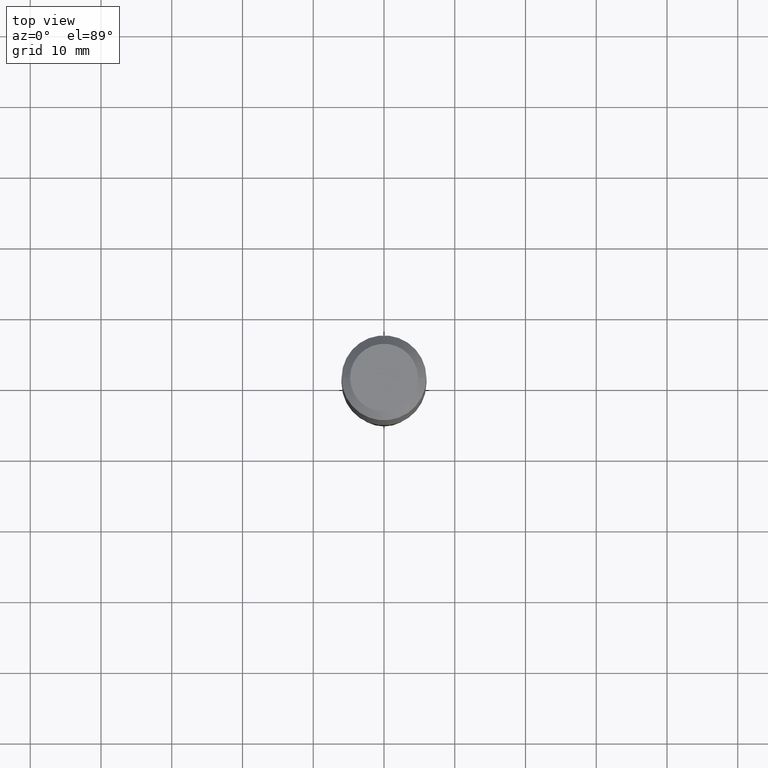
[diagram: clean part render]
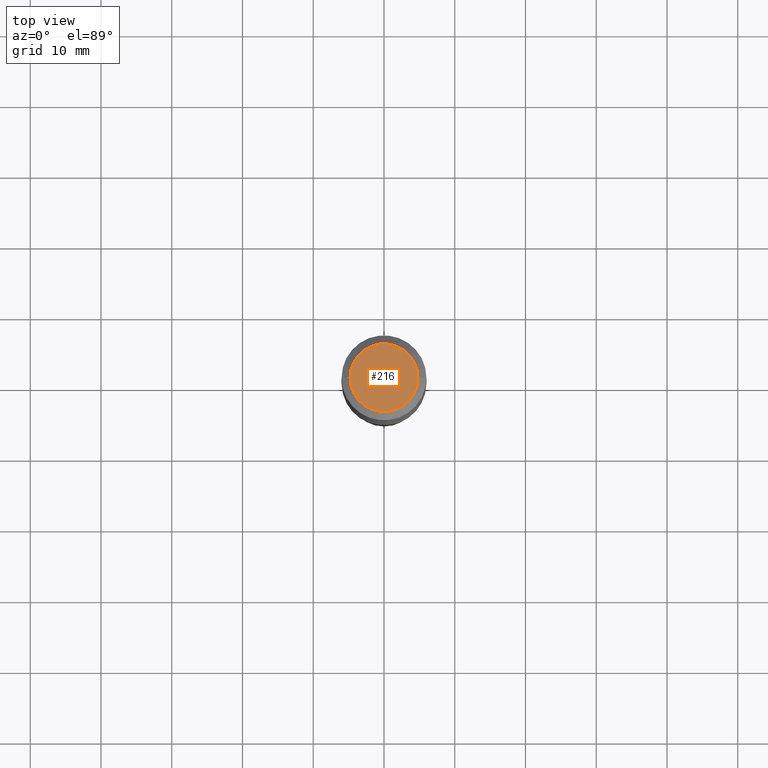
[diagram: same view with one face highlighted and labeled with its STEP entity id]
A machine part, top view. The second image highlights one B-rep face of the part: STEP entity #216.
In plain terms, the highlighted planar face has unit normal (0, -0, -1).
Its self-contained STEP definition (entity closure, byte-faithful):
#8 = ORIENTED_EDGE ( 'NONE', *, *, #303, .T. ) ;
#13 = CARTESIAN_POINT ( 'NONE',  ( -9.427742298522546243E-47, 1.346031739168365344E-32, 3.855188123715862256E-18 ) ) ;
#17 = VERTEX_POINT ( 'NONE', #235 ) ;
#32 = CARTESIAN_POINT ( 'NONE',  ( -4.713871149261273121E-47, 6.730158695841826722E-33, 1.927594061857931128E-18 ) ) ;
#57 = AXIS2_PLACEMENT_3D ( 'NONE', #13, #157, #304 ) ;
#64 = CARTESIAN_POINT ( 'NONE',  ( -0.1889600000000000168, 1.401969416799070942E-15, 3.855188123706346622E-18 ) ) ;
#73 = AXIS2_PLACEMENT_3D ( 'NONE', #108, #327, #451 ) ;
#101 = PLANE ( 'NONE',  #231 ) ;
#108 = CARTESIAN_POINT ( 'NONE',  ( -9.427742298522546243E-47, 1.346031739168365344E-32, 3.855188123715862256E-18 ) ) ;
#110 = ORIENTED_EDGE ( 'NONE', *, *, #431, .T. ) ;
#157 = DIRECTION ( 'NONE',  ( -2.445468806185136597E-29, 3.491481338843145583E-15, 1.000000000000000000 ) ) ;
#214 = CIRCLE ( 'NONE', #57, 0.1889600000000000168 ) ;
#216 = ADVANCED_FACE ( 'NONE', ( #287 ), #101, .F. ) ;
#217 = DIRECTION ( 'NONE',  ( 2.438088387897960049E-29, -3.491481338843145188E-15, -1.000000000000000000 ) ) ;
#218 = DIRECTION ( 'NONE',  ( -1.000000000000000000, 6.982962677686265922E-15, -4.876176775795935793E-29 ) ) ;
#231 = AXIS2_PLACEMENT_3D ( 'NONE', #32, #217, #218 ) ;
#235 = CARTESIAN_POINT ( 'NONE',  ( 0.1889600000000000168, -1.540873453589747738E-15, 3.855188123725863225E-18 ) ) ;
#287 = FACE_OUTER_BOUND ( 'NONE', #432, .T. ) ;
#303 = EDGE_CURVE ( 'NONE', #490, #17, #444, .T. ) ;
#304 = DIRECTION ( 'NONE',  ( 1.000000000000000000, -6.982962677686266711E-15, 4.876185090822587894E-29 ) ) ;
#327 = DIRECTION ( 'NONE',  ( -2.445468806185136597E-29, 3.491481338843145583E-15, 1.000000000000000000 ) ) ;
#431 = EDGE_CURVE ( 'NONE', #17, #490, #214, .T. ) ;
#432 = EDGE_LOOP ( 'NONE', ( #8, #110 ) ) ;
#444 = CIRCLE ( 'NONE', #73, 0.1889600000000000168 ) ;
#451 = DIRECTION ( 'NONE',  ( 1.000000000000000000, -6.982962677686266711E-15, 4.876185090822587894E-29 ) ) ;
#490 = VERTEX_POINT ( 'NONE', #64 ) ;